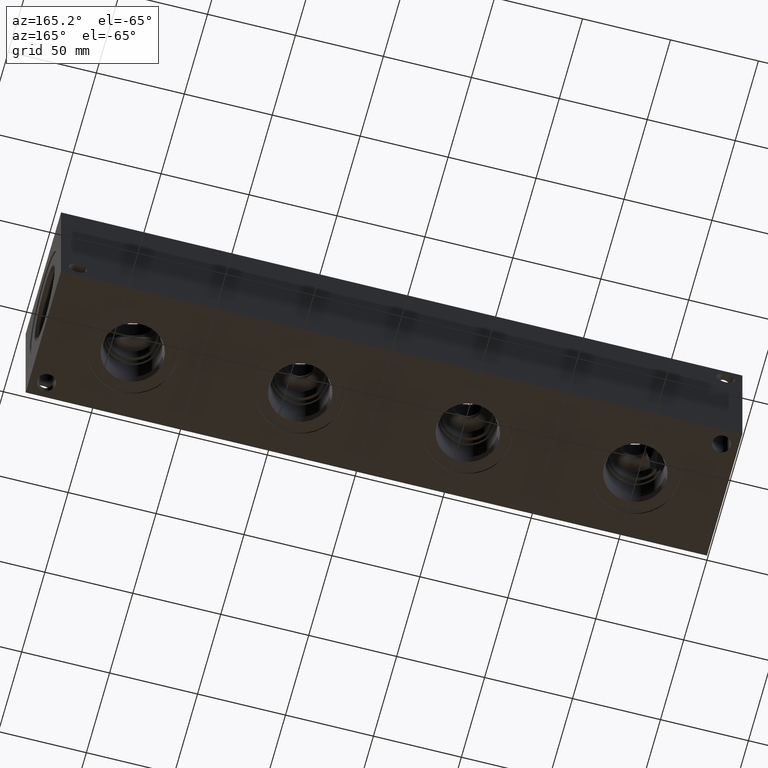
[diagram: clean part render]
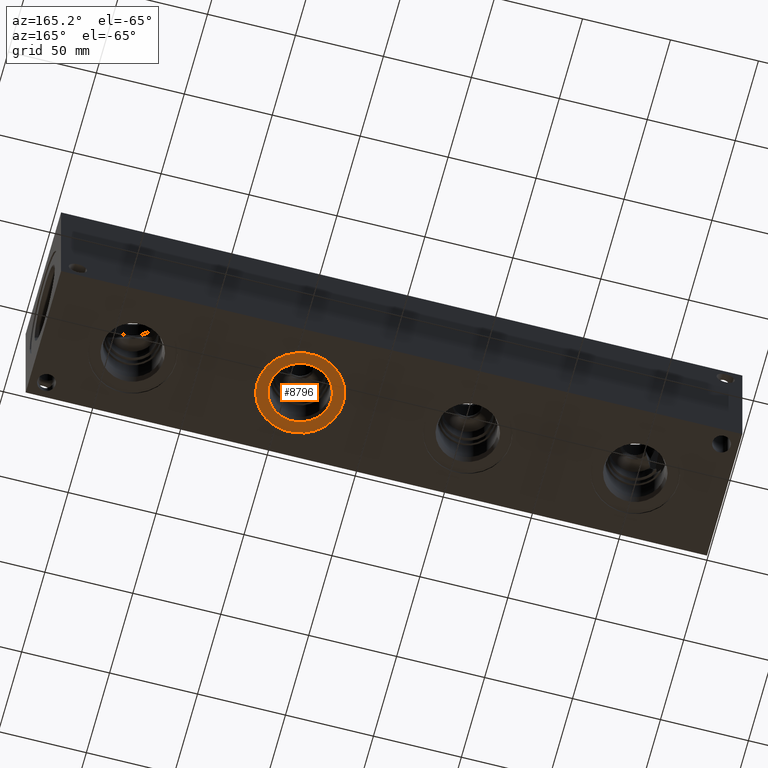
[diagram: same view with one face highlighted and labeled with its STEP entity id]
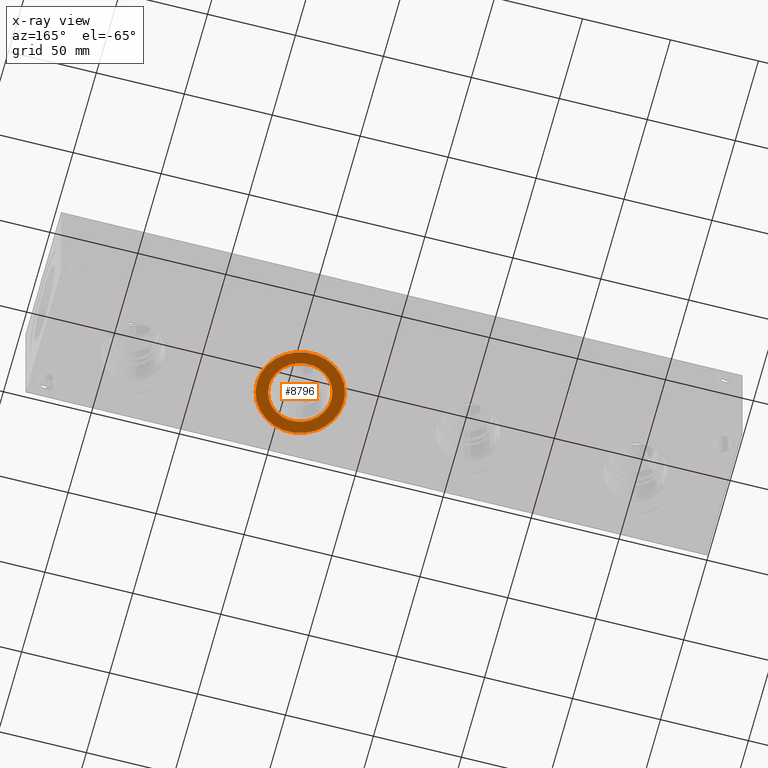
[diagram: x-ray of the same camera — body ghosted, the highlighted face saturated]
A machine part, auxiliary view. The second image highlights one B-rep face of the part: STEP entity #8796.
The next image is the same camera in x-ray: the body ghosted, the highlighted face saturated — about 0% of this face is hidden behind the body in this view.
In plain terms, the highlighted planar face has unit normal (0, 0, -1).
Its self-contained STEP definition (entity closure, byte-faithful):
#236=CIRCLE('',#9266,24.5618);
#237=CIRCLE('',#9267,24.5618);
#238=CIRCLE('',#9268,17.7546);
#403=FACE_BOUND('',#1601,.T.);
#1104=FACE_OUTER_BOUND('',#1600,.T.);
#1600=EDGE_LOOP('',(#7369,#7370));
#1601=EDGE_LOOP('',(#7371));
#4006=VERTEX_POINT('',#15069);
#4007=VERTEX_POINT('',#15070);
#4008=VERTEX_POINT('',#15073);
#5165=EDGE_CURVE('',#4006,#4007,#236,.T.);
#5166=EDGE_CURVE('',#4007,#4006,#237,.T.);
#5167=EDGE_CURVE('',#4008,#4008,#238,.T.);
#7369=ORIENTED_EDGE('',*,*,#5165,.T.);
#7370=ORIENTED_EDGE('',*,*,#5166,.T.);
#7371=ORIENTED_EDGE('',*,*,#5167,.F.);
#8112=PLANE('',#9265);
#8796=ADVANCED_FACE('',(#1104,#403),#8112,.T.);
#9265=AXIS2_PLACEMENT_3D('',#15068,#10926,#10927);
#9266=AXIS2_PLACEMENT_3D('',#15071,#10928,#10929);
#9267=AXIS2_PLACEMENT_3D('',#15072,#10930,#10931);
#9268=AXIS2_PLACEMENT_3D('',#15074,#10932,#10933);
#10926=DIRECTION('center_axis',(0.,0.,-1.));
#10927=DIRECTION('ref_axis',(1.,0.,0.));
#10928=DIRECTION('center_axis',(0.,0.,-1.));
#10929=DIRECTION('ref_axis',(1.,0.,0.));
#10930=DIRECTION('center_axis',(0.,0.,-1.));
#10931=DIRECTION('ref_axis',(1.,0.,0.));
#10932=DIRECTION('center_axis',(0.,0.,-1.));
#10933=DIRECTION('ref_axis',(1.,0.,0.));
#15068=CARTESIAN_POINT('Origin',(241.3,38.1,0.7874));
#15069=CARTESIAN_POINT('',(265.8618,38.1,0.7874));
#15070=CARTESIAN_POINT('',(216.7382,38.1,0.7874));
#15071=CARTESIAN_POINT('Origin',(241.3,38.1,0.7874));
#15072=CARTESIAN_POINT('Origin',(241.3,38.1,0.7874));
#15073=CARTESIAN_POINT('',(223.5454,38.1,0.7874));
#15074=CARTESIAN_POINT('Origin',(241.3,38.1,0.7874));